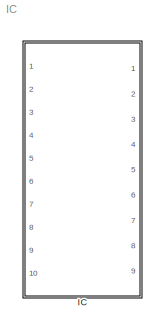
MODEL IC
KIND model
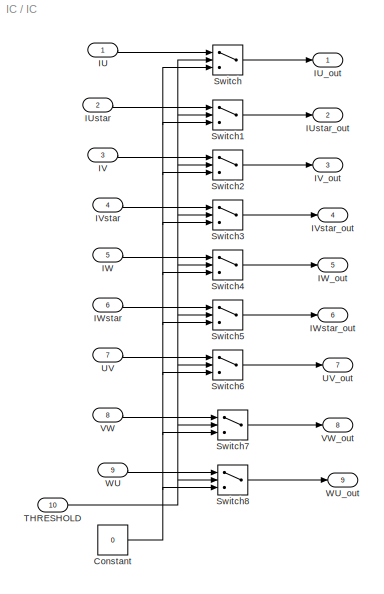
BLOCK [SubSystem] IC
  Ports = [10, 9]
  RequestExecContextInheritance = off
  SID = 1
BLOCK [Constant] IC/Constant
  SID = 12
  Value = 0
BLOCK [Inport] IC/IU
  IconDisplay = Port number
  SID = 2
BLOCK [Outport] IC/IU_out
  IconDisplay = Port number
  SID = 22
BLOCK [Inport] IC/IUstar
  IconDisplay = Port number
  Port = 2
  SID = 3
BLOCK [Outport] IC/IUstar_out
  IconDisplay = Port number
  Port = 2
  SID = 23
BLOCK [Inport] IC/IV
  IconDisplay = Port number
  Port = 3
  SID = 4
BLOCK [Outport] IC/IV_out
  IconDisplay = Port number
  Port = 3
  SID = 24
BLOCK [Inport] IC/IVstar
  IconDisplay = Port number
  Port = 4
  SID = 5
BLOCK [Outport] IC/IVstar_out
  IconDisplay = Port number
  Port = 4
  SID = 25
BLOCK [Inport] IC/IW
  IconDisplay = Port number
  Port = 5
  SID = 6
BLOCK [Outport] IC/IW_out
  IconDisplay = Port number
  Port = 5
  SID = 26
BLOCK [Inport] IC/IWstar
  IconDisplay = Port number
  Port = 6
  SID = 7
BLOCK [Outport] IC/IWstar_out
  IconDisplay = Port number
  Port = 6
  SID = 27
BLOCK [Switch] IC/Switch
  InputSameDT = off
  SID = 13
  Threshold = T
BLOCK [Switch] IC/Switch1
  InputSameDT = off
  SID = 14
  Threshold = T
BLOCK [Switch] IC/Switch2
  InputSameDT = off
  SID = 15
  Threshold = T
BLOCK [Switch] IC/Switch3
  InputSameDT = off
  SID = 16
  Threshold = T
BLOCK [Switch] IC/Switch4
  InputSameDT = off
  SID = 17
  Threshold = T
BLOCK [Switch] IC/Switch5
  InputSameDT = off
  SID = 18
  Threshold = T
BLOCK [Switch] IC/Switch6
  InputSameDT = off
  SID = 19
  Threshold = T
BLOCK [Switch] IC/Switch7
  InputSameDT = off
  SID = 20
  Threshold = T
BLOCK [Switch] IC/Switch8
  InputSameDT = off
  SID = 21
  Threshold = T
BLOCK [Inport] IC/THRESHOLD
  IconDisplay = Port number
  Port = 10
  SID = 11
BLOCK [Inport] IC/UV
  IconDisplay = Port number
  Port = 7
  SID = 8
BLOCK [Outport] IC/UV_out
  IconDisplay = Port number
  Port = 7
  SID = 28
BLOCK [Inport] IC/VW
  IconDisplay = Port number
  Port = 8
  SID = 9
BLOCK [Outport] IC/VW_out
  IconDisplay = Port number
  Port = 8
  SID = 29
BLOCK [Inport] IC/WU
  IconDisplay = Port number
  Port = 9
  SID = 10
BLOCK [Outport] IC/WU_out
  IconDisplay = Port number
  Port = 9
  SID = 30
NET IC/Constant:1 -> IC/Switch1:3, IC/Switch2:3, IC/Switch3:3, IC/Switch4:3, IC/Switch5:3, IC/Switch6:3, IC/Switch7:3, IC/Switch8:3, IC/Switch:3
LINE IC/IU:1 -> IC/Switch:1
LINE IC/IUstar:1 -> IC/Switch1:1
LINE IC/IV:1 -> IC/Switch2:1
LINE IC/IVstar:1 -> IC/Switch3:1
LINE IC/IW:1 -> IC/Switch4:1
LINE IC/IWstar:1 -> IC/Switch5:1
LINE IC/Switch1:1 -> IC/IUstar_out:1
LINE IC/Switch2:1 -> IC/IV_out:1
LINE IC/Switch3:1 -> IC/IVstar_out:1
LINE IC/Switch4:1 -> IC/IW_out:1
LINE IC/Switch5:1 -> IC/IWstar_out:1
LINE IC/Switch6:1 -> IC/UV_out:1
LINE IC/Switch7:1 -> IC/VW_out:1
LINE IC/Switch8:1 -> IC/WU_out:1
LINE IC/Switch:1 -> IC/IU_out:1
NET IC/THRESHOLD:1 -> IC/Switch1:2, IC/Switch2:2, IC/Switch3:2, IC/Switch4:2, IC/Switch5:2, IC/Switch6:2, IC/Switch7:2, IC/Switch8:2, IC/Switch:2
LINE IC/UV:1 -> IC/Switch6:1
LINE IC/VW:1 -> IC/Switch7:1
LINE IC/WU:1 -> IC/Switch8:1
note: NET lines group one-source signal fan-out (src -> all destinations, sorted); 1:1 wires keep LINE
